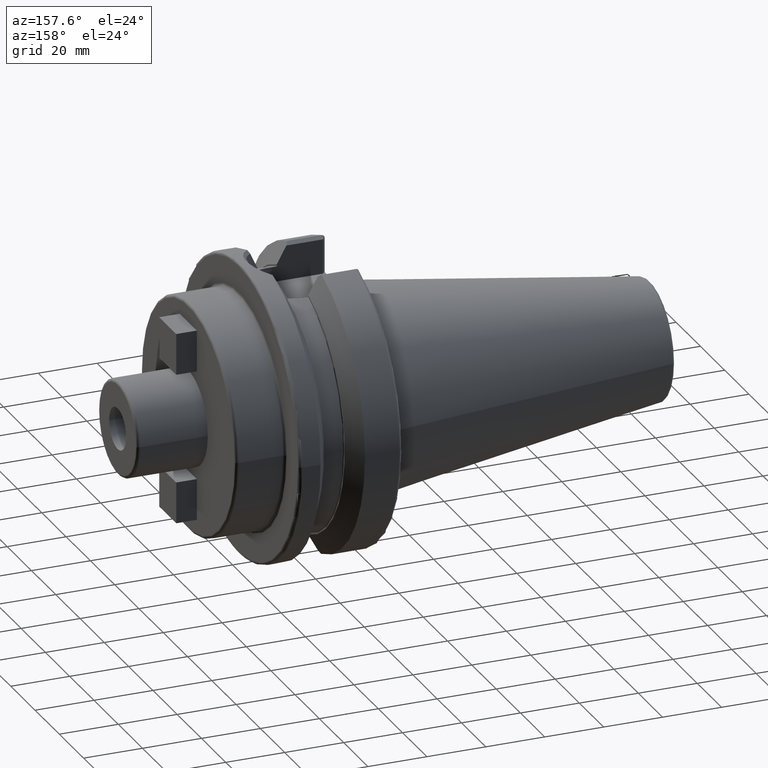
[diagram: clean part render]
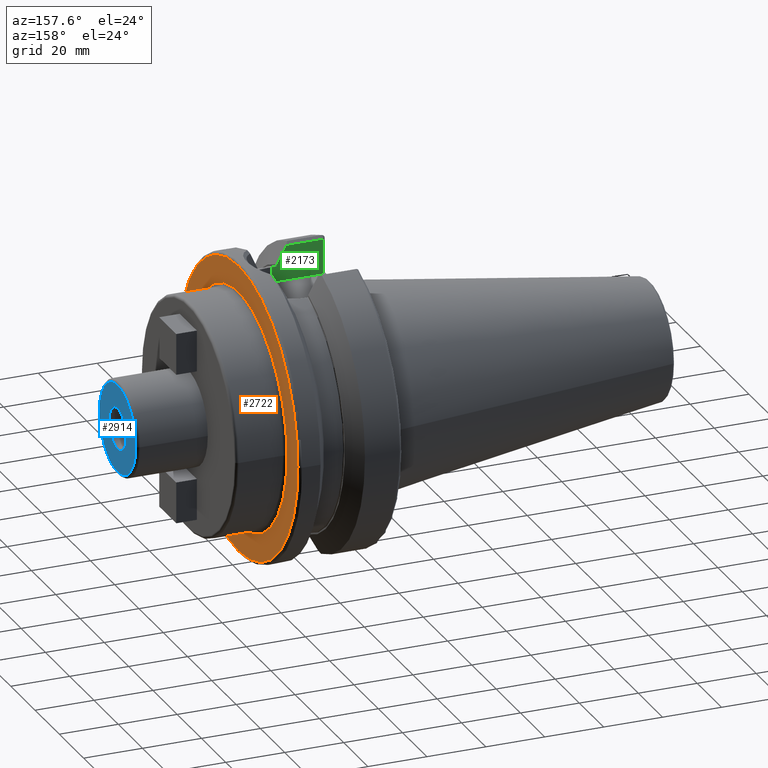
[diagram: same view with three faces highlighted in distinct colors, each labeled with its STEP entity id]
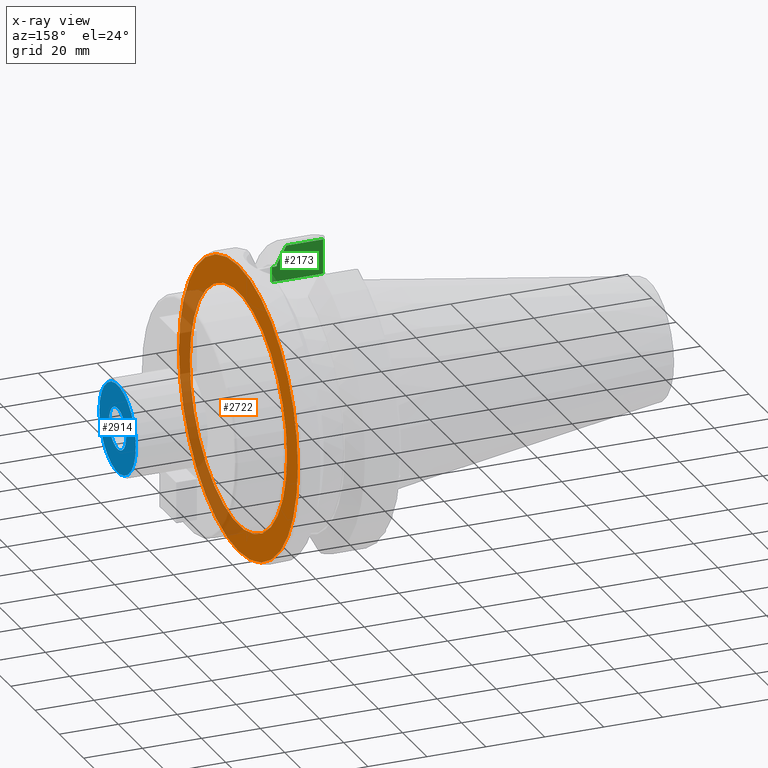
[diagram: x-ray of the same camera — body ghosted, the three highlighted faces saturated]
A machine part, auxiliary view with three faces highlighted in distinct colors.
The next image is the same camera in x-ray (body ghosted, the three faces saturated) — at least one of them is partly hidden behind the body in this view.
Their STEP definitions:

[orange] entity #2722 — the highlighted planar face has unit normal (1, 0, 0).
#814=CARTESIAN_POINT('',(3.8E1,0.E0,0.E0));
#815=DIRECTION('',(1.E0,0.E0,0.E0));
#816=DIRECTION('',(0.E0,1.E0,0.E0));
#817=AXIS2_PLACEMENT_3D('',#814,#815,#816);
#829=CARTESIAN_POINT('',(3.8E1,0.E0,0.E0));
#830=DIRECTION('',(-1.E0,0.E0,0.E0));
#831=DIRECTION('',(0.E0,1.E0,0.E0));
#832=AXIS2_PLACEMENT_3D('',#829,#830,#831);
#834=CARTESIAN_POINT('',(3.8E1,0.E0,0.E0));
#835=DIRECTION('',(1.E0,0.E0,0.E0));
#836=DIRECTION('',(0.E0,-1.E0,0.E0));
#837=AXIS2_PLACEMENT_3D('',#834,#835,#836);
#839=CARTESIAN_POINT('',(3.8E1,0.E0,0.E0));
#840=DIRECTION('',(1.E0,0.E0,0.E0));
#841=DIRECTION('',(0.E0,1.E0,0.E0));
#842=AXIS2_PLACEMENT_3D('',#839,#840,#841);
#1436=CARTESIAN_POINT('',(3.8E1,4.89875E1,0.E0));
#1437=VERTEX_POINT('',#1436);
#1438=CARTESIAN_POINT('',(3.8E1,-4.89875E1,-1.199847701465E-14));
#1439=VERTEX_POINT('',#1438);
#1571=CARTESIAN_POINT('',(3.8E1,-4.E1,0.E0));
#1572=CARTESIAN_POINT('',(3.8E1,4.E1,0.E0));
#1573=VERTEX_POINT('',#1571);
#1574=VERTEX_POINT('',#1572);
#2707=CARTESIAN_POINT('',(3.8E1,0.E0,0.E0));
#2708=DIRECTION('',(1.E0,0.E0,0.E0));
#2709=DIRECTION('',(0.E0,-1.E0,0.E0));
#2710=AXIS2_PLACEMENT_3D('',#2707,#2708,#2709);
#2711=PLANE('',#2710);
#2712=ORIENTED_EDGE('',*,*,#2702,.T.);
#2713=ORIENTED_EDGE('',*,*,#2686,.F.);
#2714=EDGE_LOOP('',(#2712,#2713));
#2715=FACE_OUTER_BOUND('',#2714,.F.);
#2717=ORIENTED_EDGE('',*,*,#2716,.T.);
#2719=ORIENTED_EDGE('',*,*,#2718,.T.);
#2720=EDGE_LOOP('',(#2717,#2719));
#2721=FACE_BOUND('',#2720,.F.);
#2722=ADVANCED_FACE('',(#2715,#2721),#2711,.T.);
#818=CIRCLE('',#817,4.89875E1);
#833=CIRCLE('',#832,4.89875E1);
#838=CIRCLE('',#837,4.E1);
#843=CIRCLE('',#842,4.E1);
#2686=EDGE_CURVE('',#1437,#1439,#818,.T.);
#2702=EDGE_CURVE('',#1437,#1439,#833,.T.);
#2716=EDGE_CURVE('',#1573,#1574,#838,.T.);
#2718=EDGE_CURVE('',#1574,#1573,#843,.T.);

[blue] entity #2914 — the highlighted planar face has unit normal (1, 0, 0).
#972=CARTESIAN_POINT('',(7.9E1,0.E0,0.E0));
#973=DIRECTION('',(-1.E0,0.E0,0.E0));
#974=DIRECTION('',(0.E0,1.E0,0.E0));
#975=AXIS2_PLACEMENT_3D('',#972,#973,#974);
#977=CARTESIAN_POINT('',(7.9E1,0.E0,0.E0));
#978=DIRECTION('',(-1.E0,0.E0,0.E0));
#979=DIRECTION('',(0.E0,-1.E0,0.E0));
#980=AXIS2_PLACEMENT_3D('',#977,#978,#979);
#982=CARTESIAN_POINT('',(7.9E1,0.E0,0.E0));
#983=DIRECTION('',(1.E0,0.E0,0.E0));
#984=DIRECTION('',(0.E0,-1.E0,0.E0));
#985=AXIS2_PLACEMENT_3D('',#982,#983,#984);
#987=CARTESIAN_POINT('',(7.9E1,0.E0,0.E0));
#988=DIRECTION('',(1.E0,0.E0,0.E0));
#989=DIRECTION('',(0.E0,1.E0,0.E0));
#990=AXIS2_PLACEMENT_3D('',#987,#988,#989);
#1567=CARTESIAN_POINT('',(7.9E1,-7.E0,0.E0));
#1568=VERTEX_POINT('',#1567);
#1569=CARTESIAN_POINT('',(7.9E1,7.E0,0.E0));
#1570=VERTEX_POINT('',#1569);
#1591=CARTESIAN_POINT('',(7.9E1,1.5E1,0.E0));
#1592=CARTESIAN_POINT('',(7.9E1,-1.5E1,0.E0));
#1593=VERTEX_POINT('',#1591);
#1594=VERTEX_POINT('',#1592);
#2899=CARTESIAN_POINT('',(7.9E1,0.E0,0.E0));
#2900=DIRECTION('',(1.E0,0.E0,0.E0));
#2901=DIRECTION('',(0.E0,-1.E0,0.E0));
#2902=AXIS2_PLACEMENT_3D('',#2899,#2900,#2901);
#2903=PLANE('',#2902);
#2904=ORIENTED_EDGE('',*,*,#2881,.T.);
#2905=ORIENTED_EDGE('',*,*,#2866,.T.);
#2906=EDGE_LOOP('',(#2904,#2905));
#2907=FACE_OUTER_BOUND('',#2906,.F.);
#2909=ORIENTED_EDGE('',*,*,#2908,.T.);
#2911=ORIENTED_EDGE('',*,*,#2910,.T.);
#2912=EDGE_LOOP('',(#2909,#2911));
#2913=FACE_BOUND('',#2912,.F.);
#2914=ADVANCED_FACE('',(#2907,#2913),#2903,.T.);
#976=CIRCLE('',#975,1.5E1);
#981=CIRCLE('',#980,1.5E1);
#986=CIRCLE('',#985,7.E0);
#991=CIRCLE('',#990,7.E0);
#2866=EDGE_CURVE('',#1594,#1593,#981,.T.);
#2881=EDGE_CURVE('',#1593,#1594,#976,.T.);
#2908=EDGE_CURVE('',#1568,#1570,#986,.T.);
#2910=EDGE_CURVE('',#1570,#1568,#991,.T.);

[green] entity #2173 — the highlighted planar face has unit normal (0, -1, 0).
#468=DIRECTION('',(0.E0,0.E0,1.E0));
#469=VECTOR('',#468,5.162930007E0);
#470=CARTESIAN_POINT('',(2.13475E1,-1.29025E1,3.52E1));
#471=LINE('',#470,#469);
#529=DIRECTION('',(0.E0,0.E0,1.E0));
#530=VECTOR('',#529,4.678451531613E-1);
#531=CARTESIAN_POINT('',(1.96625E1,-1.29025E1,4.062531376802E1));
#532=LINE('',#531,#530);
#533=CARTESIAN_POINT('',(1.640508297825E1,-1.29025E1,4.697335042340E1));
#534=CARTESIAN_POINT('',(1.678800997375E1,-1.29025E1,4.628553610571E1));
#535=CARTESIAN_POINT('',(1.753988026520E1,-1.29025E1,4.493290409157E1));
#536=CARTESIAN_POINT('',(1.862508060803E1,-1.29025E1,4.297399674455E1));
#537=CARTESIAN_POINT('',(1.932130614689E1,-1.29025E1,4.171256941858E1));
#538=CARTESIAN_POINT('',(1.96625E1,-1.29025E1,4.109315892118E1));
#540=DIRECTION('',(-1.E0,0.E0,0.E0));
#541=VECTOR('',#540,1.240508297825E1);
#542=CARTESIAN_POINT('',(1.640508297825E1,-1.29025E1,4.697335042340E1));
#543=LINE('',#542,#541);
#544=DIRECTION('',(0.E0,0.E0,-1.E0));
#545=VECTOR('',#544,1.177335042340E1);
#546=CARTESIAN_POINT('',(4.E0,-1.29025E1,4.697335042340E1));
#547=LINE('',#546,#545);
#548=DIRECTION('',(1.E0,0.E0,0.E0));
#549=VECTOR('',#548,1.435E0);
#550=CARTESIAN_POINT('',(1.99125E1,-1.29025E1,4.036293000700E1));
#551=LINE('',#550,#549);
#552=CARTESIAN_POINT('',(1.96625E1,-1.29025E1,4.062531376802E1));
#553=CARTESIAN_POINT('',(1.96625E1,-1.29025E1,4.059802443585E1));
#554=CARTESIAN_POINT('',(1.967010312706E1,-1.29025E1,4.054571527488E1));
#555=CARTESIAN_POINT('',(1.970597803203E1,-1.29025E1,4.046933362101E1));
#556=CARTESIAN_POINT('',(1.976358989115E1,-1.29025E1,4.040921074747E1));
#557=CARTESIAN_POINT('',(1.983275140013E1,-1.29025E1,4.037231907874E1));
#558=CARTESIAN_POINT('',(1.988482223968E1,-1.29025E1,4.036293000700E1));
#559=CARTESIAN_POINT('',(1.99125E1,-1.29025E1,4.036293000700E1));
#675=DIRECTION('',(1.E0,0.E0,0.E0));
#676=VECTOR('',#675,1.73475E1);
#677=CARTESIAN_POINT('',(4.E0,-1.29025E1,3.52E1));
#678=LINE('',#677,#676);
#1311=CARTESIAN_POINT('',(1.96625E1,-1.29025E1,4.062531376802E1));
#1313=VERTEX_POINT('',#1311);
#1319=CARTESIAN_POINT('',(1.99125E1,-1.29025E1,4.036293000700E1));
#1321=VERTEX_POINT('',#1319);
#1354=CARTESIAN_POINT('',(1.96625E1,-1.29025E1,4.109315892118E1));
#1356=VERTEX_POINT('',#1354);
#1440=CARTESIAN_POINT('',(2.13475E1,-1.29025E1,3.52E1));
#1442=VERTEX_POINT('',#1440);
#1459=CARTESIAN_POINT('',(2.13475E1,-1.29025E1,4.036293000700E1));
#1460=VERTEX_POINT('',#1459);
#1461=VERTEX_POINT('',#533);
#1480=CARTESIAN_POINT('',(4.E0,-1.29025E1,4.697335042340E1));
#1481=CARTESIAN_POINT('',(4.E0,-1.29025E1,3.52E1));
#1482=VERTEX_POINT('',#1480);
#1483=VERTEX_POINT('',#1481);
#2155=CARTESIAN_POINT('',(2.8E0,-1.29025E1,3.52E1));
#2156=DIRECTION('',(0.E0,-1.E0,0.E0));
#2157=DIRECTION('',(1.E0,0.E0,0.E0));
#2158=AXIS2_PLACEMENT_3D('',#2155,#2156,#2157);
#2159=PLANE('',#2158);
#2160=ORIENTED_EDGE('',*,*,#1848,.T.);
#2161=ORIENTED_EDGE('',*,*,#1889,.F.);
#2163=ORIENTED_EDGE('',*,*,#2162,.T.);
#2165=ORIENTED_EDGE('',*,*,#2164,.T.);
#2167=ORIENTED_EDGE('',*,*,#2166,.T.);
#2168=ORIENTED_EDGE('',*,*,#2135,.T.);
#2169=ORIENTED_EDGE('',*,*,#2036,.F.);
#2170=ORIENTED_EDGE('',*,*,#2004,.F.);
#2171=EDGE_LOOP('',(#2160,#2161,#2163,#2165,#2167,#2168,#2169,#2170));
#2172=FACE_OUTER_BOUND('',#2171,.F.);
#2173=ADVANCED_FACE('',(#2172),#2159,.F.);
#539=B_SPLINE_CURVE_WITH_KNOTS('',3,(#533,#534,#535,#536,#537,#538),
.UNSPECIFIED.,.F.,.F.,(4,1,1,4),(0.E0,3.333333333333E-1,6.666666666667E-1,1.E0),
.UNSPECIFIED.);
#560=B_SPLINE_CURVE_WITH_KNOTS('',3,(#552,#553,#554,#555,#556,#557,#558,#559),
.UNSPECIFIED.,.F.,.F.,(4,1,1,1,1,4),(0.E0,2.E-1,4.E-1,6.E-1,8.E-1,1.E0),
.UNSPECIFIED.);
#1848=EDGE_CURVE('',#1313,#1356,#532,.T.);
#1889=EDGE_CURVE('',#1461,#1356,#539,.T.);
#2004=EDGE_CURVE('',#1313,#1321,#560,.T.);
#2036=EDGE_CURVE('',#1321,#1460,#551,.T.);
#2135=EDGE_CURVE('',#1442,#1460,#471,.T.);
#2162=EDGE_CURVE('',#1461,#1482,#543,.T.);
#2164=EDGE_CURVE('',#1482,#1483,#547,.T.);
#2166=EDGE_CURVE('',#1483,#1442,#678,.T.);